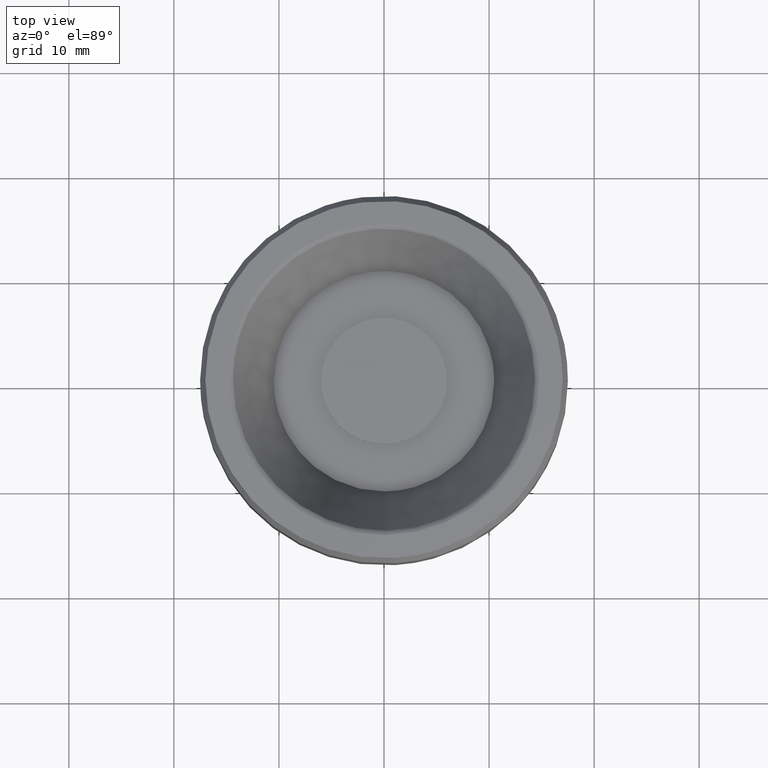
[diagram: clean part render]
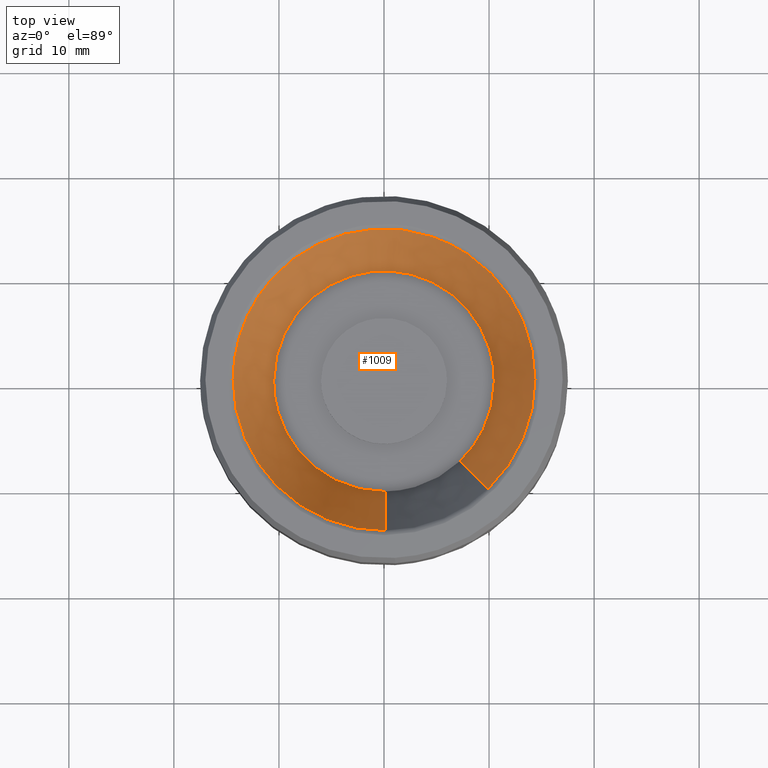
[diagram: same view with one face highlighted and labeled with its STEP entity id]
A machine part, top view. The second image highlights one B-rep face of the part: STEP entity #1009.
In plain terms, the highlighted face is a freeform B-spline surface patch.
Its self-contained STEP definition (entity closure, byte-faithful):
#839=CARTESIAN_POINT('',(7.174577494924434,-7.533638204681747,10.294677537011355));
#840=CARTESIAN_POINT('',(10.442360535329277,-4.421600962779880,10.294677537011355));
#841=CARTESIAN_POINT('',(10.402981535732200,0.090785444492045,10.294677537011360));
#842=CARTESIAN_POINT('',(10.312196091240150,10.493766980224240,10.294677537011355));
#843=CARTESIAN_POINT('',(-0.090785444492045,10.402981535732200,10.294677537011360));
#844=CARTESIAN_POINT('',(-10.493766980224240,10.312196091240150,10.294677537011355));
#845=CARTESIAN_POINT('',(-10.402981535732200,-0.090785444492045,10.294677537011360));
#846=CARTESIAN_POINT('',(-10.312196091240150,-10.493766980224240,10.294677537011355));
#847=CARTESIAN_POINT('',(0.090785444492045,-10.402981535732200,10.294677537011360));
#848=CARTESIAN_POINT('',(9.974894639669092,-10.474100725547702,18.923354044109118));
#849=CARTESIAN_POINT('',(14.518129632446765,-6.147400843267810,18.923354044109114));
#850=CARTESIAN_POINT('',(14.463380572690371,0.126220010065306,18.923354044109121));
#851=CARTESIAN_POINT('',(14.337160562625064,14.589600582755670,18.923354044109121));
#852=CARTESIAN_POINT('',(-0.126220010065306,14.463380572690371,18.923354044109121));
#853=CARTESIAN_POINT('',(-14.589600582755670,14.337160562625064,18.923354044109121));
#854=CARTESIAN_POINT('',(-14.463380572690371,-0.126220010065306,18.923354044109121));
#855=CARTESIAN_POINT('',(-14.337160562625064,-14.589600582755670,18.923354044109121));
#856=CARTESIAN_POINT('',(0.126220010065306,-14.463380572690371,18.923354044109121));
#864=(BOUNDED_SURFACE()B_SPLINE_SURFACE(2,1,((#839,#848),(#840,#849),(#841,#850),(#842,#851),(#843,#852),(#844,#853),(#845,#854),(#846,#855),(#847,#856)),.UNSPECIFIED.,.F.,.F.,.U.)B_SPLINE_SURFACE_WITH_KNOTS((3,2,2,2,3),(2,2),(0.0,12.461605552976501,36.426231616392862,60.390857679809201,84.355483743225548),(0.0,9.536359589062757),.UNSPECIFIED.)GEOMETRIC_REPRESENTATION_ITEM()RATIONAL_B_SPLINE_SURFACE(((0.853787705168325,0.853787705168325),(0.847695526217005,0.847695526217005),(1.0,1.0),(0.707106781186548,0.707106781186548),(1.0,1.0),(0.707106781186548,0.707106781186548),(1.0,1.0),(0.707106781186548,0.707106781186548),(1.0,1.0)))REPRESENTATION_ITEM('')SURFACE());
#865=CARTESIAN_POINT('',(10.500000000000000,0.0,10.500000000000000));
#866=VERTEX_POINT('',#865);
#867=CARTESIAN_POINT('',(7.241212049231528,-7.603607568652141,10.500000000000011));
#868=VERTEX_POINT('',#867);
#869=CARTESIAN_POINT('',(10.500000000000000,0.0,10.500000000000000));
#870=CARTESIAN_POINT('',(10.500000000000000,-4.500136701443826,10.500000000000000));
#871=CARTESIAN_POINT('',(7.241212049231528,-7.603607568652141,10.500000000000007));
#879=(BOUNDED_CURVE()B_SPLINE_CURVE(2,(#869,#870,#871),.UNSPECIFIED.,.F.,.U.)B_SPLINE_CURVE_WITH_KNOTS((3,3),(0.500000000000000,0.628682976150483),.UNSPECIFIED.)CURVE()GEOMETRIC_REPRESENTATION_ITEM()RATIONAL_B_SPLINE_CURVE((1.0,0.849238515635162,0.853680523245778))REPRESENTATION_ITEM(''));
#880=EDGE_CURVE('',#866,#868,#879,.T.);
#881=ORIENTED_EDGE('',*,*,#880,.T.);
#882=CARTESIAN_POINT('',(9.906594221056654,-10.402382127007071,18.712898518164959));
#883=VERTEX_POINT('',#882);
#884=CARTESIAN_POINT('',(7.241212049231528,-7.603607568652141,10.500000000000011));
#885=CARTESIAN_POINT('',(9.906594221056654,-10.402382127007071,18.712898518164959));
#886=QUASI_UNIFORM_CURVE('',1,(#884,#885),.UNSPECIFIED.,.F.,.U.);
#887=EDGE_CURVE('',#868,#883,#886,.T.);
#888=ORIENTED_EDGE('',*,*,#887,.T.);
#889=CARTESIAN_POINT('',(14.364893420312900,0.0,18.712898518164948));
#890=VERTEX_POINT('',#889);
#891=CARTESIAN_POINT('',(9.906594221056652,-10.402382127007066,18.712898518164955));
#892=CARTESIAN_POINT('',(14.364893420312901,-6.156569913626800,18.712898518164948));
#893=CARTESIAN_POINT('',(14.364893420312900,0.0,18.712898518164948));
#901=(BOUNDED_CURVE()B_SPLINE_CURVE(2,(#891,#892,#893),.UNSPECIFIED.,.F.,.U.)B_SPLINE_CURVE_WITH_KNOTS((3,3),(0.371317023849513,0.500000000000000),.UNSPECIFIED.)CURVE()GEOMETRIC_REPRESENTATION_ITEM()RATIONAL_B_SPLINE_CURVE((0.853680523245778,0.849238515635157,1.0))REPRESENTATION_ITEM(''));
#902=EDGE_CURVE('',#883,#890,#901,.T.);
#903=ORIENTED_EDGE('',*,*,#902,.T.);
#904=CARTESIAN_POINT('',(4.574591779507223,13.617021445473391,18.712898519545760));
#905=VERTEX_POINT('',#904);
#906=CARTESIAN_POINT('',(14.364893420312900,0.0,18.712898518164948));
#907=CARTESIAN_POINT('',(14.364893420312908,10.328003094885748,18.712898518164952));
#908=CARTESIAN_POINT('',(4.574591779507223,13.617021445473391,18.712898519545767));
#916=(BOUNDED_CURVE()B_SPLINE_CURVE(2,(#906,#907,#908),.UNSPECIFIED.,.F.,.U.)B_SPLINE_CURVE_WITH_KNOTS((3,3),(0.500000000000000,0.695865557710340),.UNSPECIFIED.)CURVE()GEOMETRIC_REPRESENTATION_ITEM()RATIONAL_B_SPLINE_CURVE((1.0,0.770529225390106,0.900621820757737))REPRESENTATION_ITEM(''));
#917=EDGE_CURVE('',#890,#905,#916,.T.);
#918=ORIENTED_EDGE('',*,*,#917,.T.);
#919=CARTESIAN_POINT('',(-12.997744173051659,6.116274144189596,18.712898519498658));
#920=VERTEX_POINT('',#919);
#921=CARTESIAN_POINT('',(4.574591779507224,13.617021445473398,18.712898519545757));
#922=CARTESIAN_POINT('',(2.348428392698268,14.364893420312903,18.712898518164952));
#923=CARTESIAN_POINT('',(0.0,14.364893420312900,18.712898518164948));
#924=CARTESIAN_POINT('',(-9.116238571674129,14.364893420312898,18.712898518164948));
#925=CARTESIAN_POINT('',(-12.997744173051661,6.116274144189597,18.712898519498665));
#933=(BOUNDED_CURVE()B_SPLINE_CURVE(2,(#921,#922,#923,#924,#925),.UNSPECIFIED.,.F.,.U.)B_SPLINE_CURVE_WITH_KNOTS((3,2,3),(0.695865557710340,0.750000000000000,0.927668464636145),.UNSPECIFIED.)CURVE()GEOMETRIC_REPRESENTATION_ITEM()RATIONAL_B_SPLINE_CURVE((0.900621820757737,0.936577555796442,1.0,0.791848446044302,0.879552628112096))REPRESENTATION_ITEM(''));
#934=EDGE_CURVE('',#905,#920,#933,.T.);
#935=ORIENTED_EDGE('',*,*,#934,.T.);
#936=CARTESIAN_POINT('',(-14.364893420312900,0.0,18.712898518164948));
#937=VERTEX_POINT('',#936);
#938=CARTESIAN_POINT('',(-12.997744173051659,6.116274144189596,18.712898519498658));
#939=CARTESIAN_POINT('',(-14.364893420312905,3.210934103450912,18.712898518164955));
#940=CARTESIAN_POINT('',(-14.364893420312900,0.0,18.712898518164948));
#948=(BOUNDED_CURVE()B_SPLINE_CURVE(2,(#938,#939,#940),.UNSPECIFIED.,.F.,.U.)B_SPLINE_CURVE_WITH_KNOTS((3,3),(0.927668464636146,1.0),.UNSPECIFIED.)CURVE()GEOMETRIC_REPRESENTATION_ITEM()RATIONAL_B_SPLINE_CURVE((0.879552628112097,0.915258335142247,1.0))REPRESENTATION_ITEM(''));
#949=EDGE_CURVE('',#920,#937,#948,.T.);
#950=ORIENTED_EDGE('',*,*,#949,.T.);
#951=CARTESIAN_POINT('',(0.125355752391695,-14.364346449190190,18.712898518170221));
#952=VERTEX_POINT('',#951);
#953=CARTESIAN_POINT('',(-14.364893420312900,0.0,18.712898518164948));
#954=CARTESIAN_POINT('',(-14.364893420312898,-14.364893420312898,18.712898518164959));
#955=CARTESIAN_POINT('',(0.0,-14.364893420312900,18.712898518164948));
#956=CARTESIAN_POINT('',(0.062679069523767,-14.364893420312900,18.712898518164959));
#957=CARTESIAN_POINT('',(0.125355752391695,-14.364346449190185,18.712898518170224));
#965=(BOUNDED_CURVE()B_SPLINE_CURVE(2,(#953,#954,#955,#956,#957),.UNSPECIFIED.,.F.,.U.)B_SPLINE_CURVE_WITH_KNOTS((3,2,3),(0.0,0.250000000000000,0.251539894335697),.UNSPECIFIED.)CURVE()GEOMETRIC_REPRESENTATION_ITEM()RATIONAL_B_SPLINE_CURVE((1.0,0.707106781186548,1.0,0.998195901565540,0.996414028098763))REPRESENTATION_ITEM(''));
#966=EDGE_CURVE('',#937,#952,#965,.T.);
#967=ORIENTED_EDGE('',*,*,#966,.T.);
#968=CARTESIAN_POINT('',(0.091620473632318,-10.499596657637159,10.499992338292969));
#969=VERTEX_POINT('',#968);
#970=CARTESIAN_POINT('',(0.091620473632318,-10.499596657637159,10.499992338292969));
#971=CARTESIAN_POINT('',(0.125355752391695,-14.364346449190190,18.712898518170221));
#972=QUASI_UNIFORM_CURVE('',1,(#970,#971),.UNSPECIFIED.,.F.,.U.);
#973=EDGE_CURVE('',#969,#952,#972,.T.);
#974=ORIENTED_EDGE('',*,*,#973,.F.);
#975=CARTESIAN_POINT('',(-10.500000000000000,0.0,10.500000000000000));
#976=VERTEX_POINT('',#975);
#977=CARTESIAN_POINT('',(0.091620473632318,-10.499596657637161,10.499992338292969));
#978=CARTESIAN_POINT('',(0.045811093172864,-10.499996402421663,10.499992354861643));
#979=CARTESIAN_POINT('',(-0.000000031324180,-10.499996410286720,10.499992371575511));
#980=CARTESIAN_POINT('',(-10.500000015593757,-10.499998212974258,10.499996202429029));
#981=CARTESIAN_POINT('',(-10.500000000000000,0.0,10.500000000000000));
#989=(BOUNDED_CURVE()B_SPLINE_CURVE(2,(#977,#978,#979,#980,#981),.UNSPECIFIED.,.F.,.U.)B_SPLINE_CURVE_WITH_KNOTS((3,2,3),(0.748460241847708,0.750000000000000,1.0),.UNSPECIFIED.)CURVE()GEOMETRIC_REPRESENTATION_ITEM()RATIONAL_B_SPLINE_CURVE((0.996414343265490,0.998196061114323,1.0,0.707106781186547,1.0))REPRESENTATION_ITEM(''));
#990=EDGE_CURVE('',#969,#976,#989,.T.);
#991=ORIENTED_EDGE('',*,*,#990,.T.);
#992=CARTESIAN_POINT('',(-10.500000000000000,0.0,10.500000000000000));
#993=CARTESIAN_POINT('',(-10.500000000000000,10.500000000000000,10.500000000000000));
#994=CARTESIAN_POINT('',(0.0,10.500000000000000,10.500000000000000));
#995=CARTESIAN_POINT('',(10.500000000000000,10.500000000000000,10.500000000000000));
#996=CARTESIAN_POINT('',(10.500000000000000,0.0,10.500000000000000));
#1004=(BOUNDED_CURVE()B_SPLINE_CURVE(2,(#992,#993,#994,#995,#996),.UNSPECIFIED.,.F.,.U.)B_SPLINE_CURVE_WITH_KNOTS((3,2,3),(0.0,0.250000000000000,0.500000000000000),.UNSPECIFIED.)CURVE()GEOMETRIC_REPRESENTATION_ITEM()RATIONAL_B_SPLINE_CURVE((1.0,0.707106781186547,1.0,0.707106781186547,1.0))REPRESENTATION_ITEM(''));
#1005=EDGE_CURVE('',#976,#866,#1004,.T.);
#1006=ORIENTED_EDGE('',*,*,#1005,.T.);
#1007=EDGE_LOOP('',(#881,#888,#903,#918,#935,#950,#967,#974,#991,#1006));
#1008=FACE_OUTER_BOUND('',#1007,.T.);
#1009=ADVANCED_FACE('',(#1008),#864,.F.);